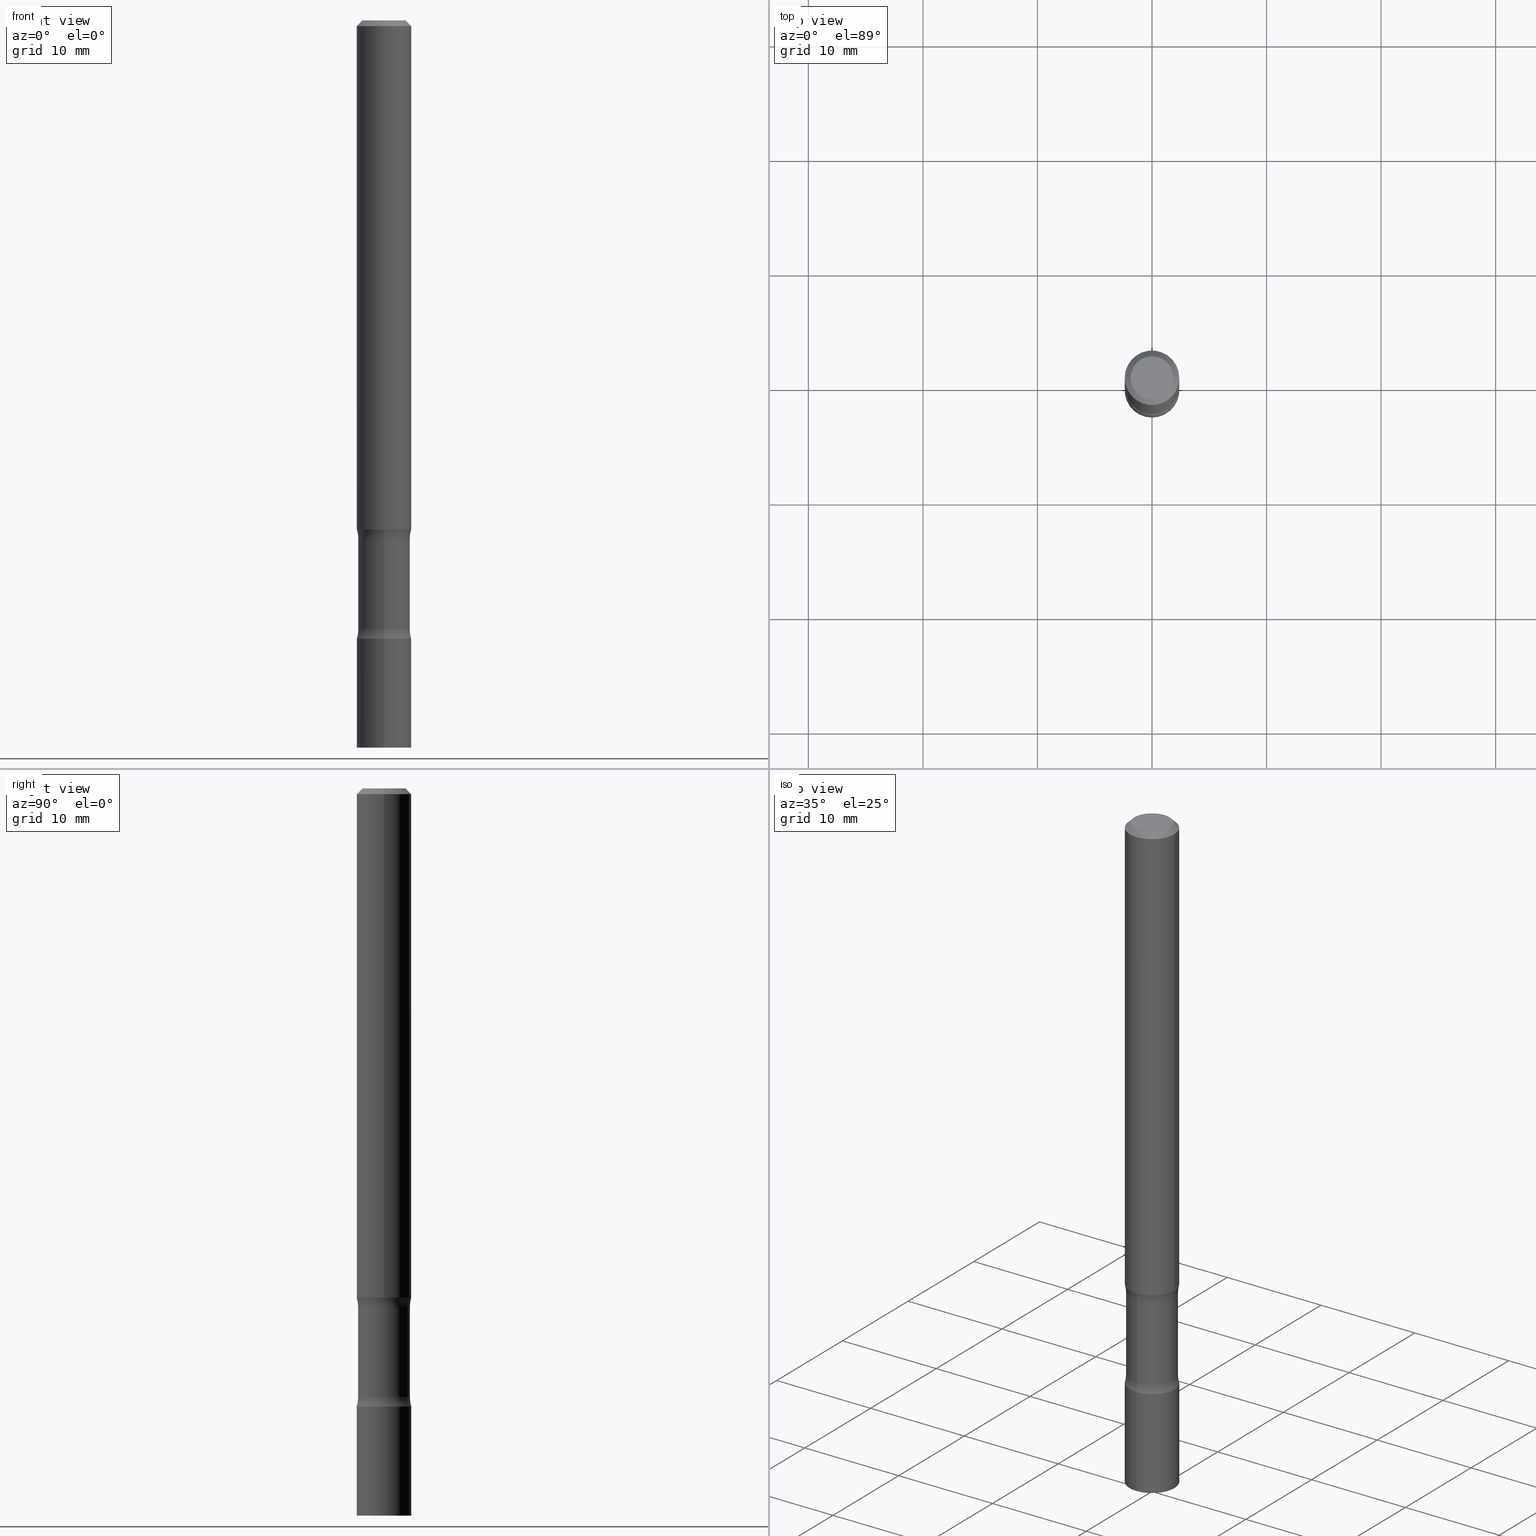
[diagram: canonical four-view strip — front | top / right | iso, engineering-drawing reading convention]
A machine part, canonical four-view strip (front | top / right | iso — engineering-drawing reading convention). The complete STEP part file that produces these views, byte-faithful:
ISO-10303-21;
HEADER;
FILE_DESCRIPTION (( 'STEP AP203' ),
    '1' );
FILE_NAME ('37768.STEP',
    '2024-03-11T13:24:23',
    ( '' ),
    ( '' ),
    'SwSTEP 2.0',
    'SolidWorks 2023',
    '' );
FILE_SCHEMA (( 'CONFIG_CONTROL_DESIGN' ));
ENDSEC;

DATA;
#1 = PRODUCT_RELATED_PRODUCT_CATEGORY ( 'detail', '', ( #291 ) ) ;
#2 = PLANE ( 'NONE',  #220 ) ;
#3 = AXIS2_PLACEMENT_3D ( 'NONE', #19, #158, #300 ) ;
#4 = CARTESIAN_POINT ( 'NONE',  ( 5.196337625650303527E-29, -7.419803958472619019E-15, -2.125000000000000000 ) ) ;
#5 = DIRECTION ( 'NONE',  ( 2.577039791092079409E-29, -3.303064199901000429E-15, -1.000000000000000000 ) ) ;
#6 = CIRCLE ( 'NONE', #292, 0.08906250000000008604 ) ;
#7 = ADVANCED_FACE ( 'NONE', ( #165 ), #459, .T. ) ;
#8 = DATE_AND_TIME ( #360, #53 ) ;
#9 = MANIFOLD_SOLID_BREP ( 'Body-Move/Copy2[2]', #21 ) ;
#10 = CARTESIAN_POINT ( 'NONE',  ( 0.000000000000000000, 0.000000000000000000, 0.000000000000000000 ) ) ;
#11 = CIRCLE ( 'NONE', #227, 0.1249999999999999584 ) ;
#12 = APPLICATION_PROTOCOL_DEFINITION ( 'international standard', 'config_control_design', 1994, #356 ) ;
#13 = DIRECTION ( 'NONE',  ( 6.982962677686265133E-15, 1.000000000000000000, -6.134676196298693444E-15 ) ) ;
#14 = ADVANCED_FACE ( 'NONE', ( #466 ), #399, .F. ) ;
#15 = DIRECTION ( 'NONE',  ( 6.982962677686265922E-15, 1.000000000000000000, -2.913971193241880372E-15 ) ) ;
#16 = VERTEX_POINT ( 'NONE', #110 ) ;
#17 = PRODUCT_DEFINITION_SHAPE ( 'NONE', 'NONE',  #259 ) ;
#18 = APPROVAL_STATUS ( 'not_yet_approved' ) ;
#19 = CARTESIAN_POINT ( 'NONE',  ( 6.162727547309833585E-29, -8.658453033435494328E-15, -2.500000000000000000 ) ) ;
#20 = ORIENTED_EDGE ( 'NONE', *, *, #394, .T. ) ;
#21 = CLOSED_SHELL ( 'NONE', ( #48, #144, #453, #83, #135, #7 ) ) ;
#22 = CIRCLE ( 'NONE', #302, 0.07374999999999982958 ) ;
#23 = ADVANCED_BREP_SHAPE_REPRESENTATION ( '37768', ( #344, #9, #347, #490 ), #123 ) ;
#24 = EDGE_CURVE ( 'NONE', #40, #304, #264, .T. ) ;
#25 = ORIENTED_EDGE ( 'NONE', *, *, #470, .T. ) ;
#26 = EDGE_CURVE ( 'NONE', #40, #370, #294, .T. ) ;
#27 = ORIENTED_EDGE ( 'NONE', *, *, #372, .F. ) ;
#28 = ORGANIZATION ( 'UNSPECIFIED', 'UNSPECIFIED', '' ) ;
#29 = CARTESIAN_POINT ( 'NONE',  ( 6.219201134814764177E-16, 0.08906249999999373002, -1.783910210022204623 ) ) ;
#30 = AXIS2_PLACEMENT_3D ( 'NONE', #382, #239, #380 ) ;
#31 = ORIENTED_EDGE ( 'NONE', *, *, #206, .F. ) ;
#32 = CIRCLE ( 'NONE', #238, 0.08906250000000003053 ) ;
#33 = DIRECTION ( 'NONE',  ( 6.860497997771531562E-15, 1.000000000000000000, 0.000000000000000000 ) ) ;
#34 = EDGE_LOOP ( 'NONE', ( #419, #381, #377, #82 ) ) ;
#35 = DIRECTION ( 'NONE',  ( 6.982962677686265133E-15, 1.000000000000000000, -3.067338098149345144E-15 ) ) ;
#36 = VERTEX_POINT ( 'NONE', #285 ) ;
#37 = EDGE_LOOP ( 'NONE', ( #223, #332, #491, #379 ) ) ;
#38 = EDGE_CURVE ( 'NONE', #40, #108, #90, .T. ) ;
#39 = VECTOR ( 'NONE', #266, 39.37007874015748143 ) ;
#40 = VERTEX_POINT ( 'NONE', #173 ) ;
#41 = EDGE_CURVE ( 'NONE', #150, #406, #352, .T. ) ;
#42 = CARTESIAN_POINT ( 'NONE',  ( -1.468575352647925561E-15, -0.2140625000000063172, -1.783910210022203513 ) ) ;
#43 =( NAMED_UNIT ( * ) PLANE_ANGLE_UNIT ( ) SI_UNIT ( $, .RADIAN. ) );
#44 = AXIS2_PLACEMENT_3D ( 'NONE', #253, #224, #56 ) ;
#45 = DIRECTION ( 'NONE',  ( 2.445335353247201149E-29, -3.491672451045938200E-15, -1.000000000000000000 ) ) ;
#46 = CARTESIAN_POINT ( 'NONE',  ( 1.494790448192267744E-15, 0.2140624999999927169, -2.091089789977796709 ) ) ;
#47 = DIRECTION ( 'NONE',  ( 6.860497997771531562E-15, 1.000000000000000000, 0.000000000000000000 ) ) ;
#48 = ADVANCED_FACE ( 'NONE', ( #170 ), #85, .T. ) ;
#49 =( NAMED_UNIT ( * ) SI_UNIT ( $, .STERADIAN. ) SOLID_ANGLE_UNIT ( ) );
#50 = FACE_OUTER_BOUND ( 'NONE', #269, .T. ) ;
#51 = SECURITY_CLASSIFICATION_LEVEL ( 'unclassified' ) ;
#52 = CARTESIAN_POINT ( 'NONE',  ( 4.890937612370273159E-31, -6.982962677686291609E-17, -0.02000000000000000042 ) ) ;
#53 = LOCAL_TIME ( 9, 24, 23.00000000000000000, #357 ) ;
#54 = EDGE_CURVE ( 'NONE', #36, #339, #79, .T. ) ;
#55 = APPROVAL_STATUS ( 'not_yet_approved' ) ;
#56 = DIRECTION ( 'NONE',  ( -6.982962677686265922E-15, -1.000000000000000000, 5.827942386483760744E-15 ) ) ;
#57 = AXIS2_PLACEMENT_3D ( 'NONE', #395, #476, #282 ) ;
#58 = ADVANCED_FACE ( 'NONE', ( #50 ), #497, .F. ) ;
#59 = CARTESIAN_POINT ( 'NONE',  ( 0.000000000000000000, 0.000000000000000000, 0.000000000000000000 ) ) ;
#60 = EDGE_LOOP ( 'NONE', ( #221, #299, #20, #450 ) ) ;
#61 = DIRECTION ( 'NONE',  ( 1.000000000000000000, 0.000000000000000000, 0.000000000000000000 ) ) ;
#62 = ORIENTED_EDGE ( 'NONE', *, *, #274, .F. ) ;
#63 = PRODUCT_DEFINITION_FORMATION_WITH_SPECIFIED_SOURCE ( 'ANY', '', #291, .NOT_KNOWN. ) ;
#64 = ORIENTED_EDGE ( 'NONE', *, *, #415, .F. ) ;
#65 = AXIS2_PLACEMENT_3D ( 'NONE', #328, #73, #194 ) ;
#66 = EDGE_LOOP ( 'NONE', ( #430, #162, #68, #106 ) ) ;
#67 = DIRECTION ( 'NONE',  ( -6.982962677686265922E-15, -1.000000000000000000, 3.491672451045937805E-15 ) ) ;
#68 = ORIENTED_EDGE ( 'NONE', *, *, #78, .F. ) ;
#69 = AXIS2_PLACEMENT_3D ( 'NONE', #343, #456, #346 ) ;
#70 = CC_DESIGN_APPROVAL ( #86, ( #311 ) ) ;
#71 = CYLINDRICAL_SURFACE ( 'NONE', #3, 0.08906250000000004441 ) ;
#72 = ORIENTED_EDGE ( 'NONE', *, *, #372, .T. ) ;
#73 = DIRECTION ( 'NONE',  ( -2.445335353247201709E-29, 3.491672451045937805E-15, 1.000000000000000000 ) ) ;
#74 = ORIENTED_EDGE ( 'NONE', *, *, #488, .F. ) ;
#75 = DIRECTION ( 'NONE',  ( -6.982962677686265922E-15, -1.000000000000000000, 0.000000000000000000 ) ) ;
#76 = APPROVAL ( #18, 'UNSPECIFIED' ) ;
#77 = EDGE_LOOP ( 'NONE', ( #147, #290 ) ) ;
#78 = EDGE_CURVE ( 'NONE', #406, #150, #129, .T. ) ;
#79 = CIRCLE ( 'NONE', #417, 0.09375000000000001388 ) ;
#80 = CARTESIAN_POINT ( 'NONE',  ( 6.219201134814847007E-16, 0.08906249999999277245, -2.091089789977796265 ) ) ;
#81 = TOROIDAL_SURFACE ( 'NONE', #157, 0.2140625000000000167, 0.1249999999999999584 ) ;
#82 = ORIENTED_EDGE ( 'NONE', *, *, #268, .F. ) ;
#83 = ADVANCED_FACE ( 'NONE', ( #355 ), #250, .F. ) ;
#84 = CARTESIAN_POINT ( 'NONE',  ( 4.890937612370273159E-31, -6.982962677686291609E-17, -0.02000000000000000042 ) ) ;
#85 = CYLINDRICAL_SURFACE ( 'NONE', #342, 0.09374999999999988898 ) ;
#86 = APPROVAL ( #55, 'UNSPECIFIED' ) ;
#87 = DIRECTION ( 'NONE',  ( 2.577039791092079409E-29, -3.303064199901000429E-15, -1.000000000000000000 ) ) ;
#88 = DIRECTION ( 'NONE',  ( 6.982962677686265922E-15, 1.000000000000000000, -3.303064199901000035E-15 ) ) ;
#89 = LINE ( 'NONE', #432, #389 ) ;
#90 = CIRCLE ( 'NONE', #225, 0.1250000000000000278 ) ;
#91 = FACE_OUTER_BOUND ( 'NONE', #77, .T. ) ;
#92 = MECHANICAL_CONTEXT ( 'NONE', #330, 'mechanical' ) ;
#93 = DIRECTION ( 'NONE',  ( 6.982962677686265922E-15, 1.000000000000000000, -2.913971193241880372E-15 ) ) ;
#94 = PERSON_AND_ORGANIZATION ( #489, #28 ) ;
#95 = CARTESIAN_POINT ( 'NONE',  ( 6.661338147750938256E-16, 0.09375000000000001388, -3.273442922855567185E-16 ) ) ;
#96 = DATE_TIME_ROLE ( 'classification_date' ) ;
#97 = CYLINDRICAL_SURFACE ( 'NONE', #134, 0.09375000000000001388 ) ;
#98 = LOCAL_TIME ( 9, 24, 23.00000000000000000, #475 ) ;
#99 = EDGE_CURVE ( 'NONE', #160, #258, #410, .T. ) ;
#100 = SHAPE_DEFINITION_REPRESENTATION ( #17, #23 ) ;
#101 = DIRECTION ( 'NONE',  ( 2.577039791092079409E-29, -3.303064199901000035E-15, -1.000000000000000000 ) ) ;
#102 = ORIENTED_EDGE ( 'NONE', *, *, #396, .T. ) ;
#103 = DIRECTION ( 'NONE',  ( 0.000000000000000000, 0.000000000000000000, 1.000000000000000000 ) ) ;
#104 = CARTESIAN_POINT ( 'NONE',  ( -6.270923951087528204E-16, -0.08906250000000738576, -2.091089789977795821 ) ) ;
#105 = ORIENTED_EDGE ( 'NONE', *, *, #192, .F. ) ;
#106 = ORIENTED_EDGE ( 'NONE', *, *, #394, .F. ) ;
#107 = APPROVAL ( #247, 'UNSPECIFIED' ) ;
#108 = VERTEX_POINT ( 'NONE', #392 ) ;
#109 = CARTESIAN_POINT ( 'NONE',  ( -0.09375000000000001388, -2.423827170101085722E-15, -1.750000000000000000 ) ) ;
#110 = CARTESIAN_POINT ( 'NONE',  ( -6.546527510330356365E-16, -0.09375000000000743849, -2.125000000000000000 ) ) ;
#111 = AXIS2_PLACEMENT_3D ( 'NONE', #505, #461, #273 ) ;
#112 = ADVANCED_FACE ( 'NONE', ( #136 ), #318, .T. ) ;
#113 = CARTESIAN_POINT ( 'NONE',  ( 6.113338383118004413E-29, -8.729181127614846091E-15, -2.500000000000000000 ) ) ;
#114 = EDGE_LOOP ( 'NONE', ( #301, #334, #124, #64 ) ) ;
#115 = ADVANCED_FACE ( 'NONE', ( #91 ), #2, .F. ) ;
#116 = CARTESIAN_POINT ( 'NONE',  ( -0.07374999999999982958, 5.499083108677920638E-16, -3.723527850031185562E-30 ) ) ;
#117 = DIRECTION ( 'NONE',  ( 2.577039791092079409E-29, -3.303064199901000035E-15, -1.000000000000000000 ) ) ;
#118 = DIRECTION ( 'NONE',  ( -6.982962677686265922E-15, -1.000000000000000000, 0.000000000000000000 ) ) ;
#119 = ADVANCED_FACE ( 'NONE', ( #242 ), #387, .T. ) ;
#120 = ORIENTED_EDGE ( 'NONE', *, *, #237, .F. ) ;
#121 = CLOSED_SHELL ( 'NONE', ( #219, #14, #58, #400, #115, #185, #413, #112 ) ) ;
#122 = DIRECTION ( 'NONE',  ( 2.577039791092079409E-29, -3.303064199901000429E-15, -1.000000000000000000 ) ) ;
#123 =( GEOMETRIC_REPRESENTATION_CONTEXT ( 3 ) GLOBAL_UNCERTAINTY_ASSIGNED_CONTEXT ( ( #433 ) ) GLOBAL_UNIT_ASSIGNED_CONTEXT ( ( #312, #43, #49 ) ) REPRESENTATION_CONTEXT ( 'NONE', 'WORKASPACE' ) );
#124 = ORIENTED_EDGE ( 'NONE', *, *, #274, .T. ) ;
#125 = DIRECTION ( 'NONE',  ( 2.438088387897960049E-29, -3.491481338843145188E-15, -1.000000000000000000 ) ) ;
#126 = FACE_OUTER_BOUND ( 'NONE', #149, .T. ) ;
#127 = CARTESIAN_POINT ( 'NONE',  ( 4.314805790192302667E-29, -6.296785408305889994E-15, -1.783910210022204401 ) ) ;
#128 = APPROVAL_DATE_TIME ( #8, #76 ) ;
#129 = CIRCLE ( 'NONE', #482, 0.09374999999999979183 ) ;
#130 = AXIS2_PLACEMENT_3D ( 'NONE', #276, #204, #13 ) ;
#131 = APPROVAL_PERSON_ORGANIZATION ( #283, #76, #473 ) ;
#132 = CARTESIAN_POINT ( 'NONE',  ( 4.279570410823988484E-29, -6.110092342975504671E-15, -1.750000000000000000 ) ) ;
#133 = PERSON_AND_ORGANIZATION_ROLE ( 'creator' ) ;
#134 = AXIS2_PLACEMENT_3D ( 'NONE', #59, #335, #67 ) ;
#135 = ADVANCED_FACE ( 'NONE', ( #507 ), #207, .F. ) ;
#136 = FACE_OUTER_BOUND ( 'NONE', #412, .T. ) ;
#137 = PERSON_AND_ORGANIZATION ( #489, #28 ) ;
#138 = DIRECTION ( 'NONE',  ( 6.982962677686265922E-15, 1.000000000000000000, -3.491672451045938200E-15 ) ) ;
#139 = EDGE_CURVE ( 'NONE', #414, #375, #493, .T. ) ;
#140 = CALENDAR_DATE ( 2024, 11, 3 ) ;
#141 = AXIS2_PLACEMENT_3D ( 'NONE', #52, #321, #246 ) ;
#142 = CARTESIAN_POINT ( 'NONE',  ( -0.09374999999999979183, 5.848231242562231212E-16, -0.02000000000000000042 ) ) ;
#143 = CC_DESIGN_APPROVAL ( #76, ( #259 ) ) ;
#144 = ADVANCED_FACE ( 'NONE', ( #211 ), #305, .T. ) ;
#145 = COORDINATED_UNIVERSAL_TIME_OFFSET ( 5, 0, .BEHIND. ) ;
#146 = DIRECTION ( 'NONE',  ( -6.982962677686265922E-15, -1.000000000000000000, 3.303064199901000035E-15 ) ) ;
#147 = ORIENTED_EDGE ( 'NONE', *, *, #470, .F. ) ;
#148 = EDGE_CURVE ( 'NONE', #449, #236, #440, .T. ) ;
#149 = EDGE_LOOP ( 'NONE', ( #181, #296 ) ) ;
#150 = VERTEX_POINT ( 'NONE', #142 ) ;
#151 = DIRECTION ( 'NONE',  ( 2.577039791092079409E-29, -3.303064199901000429E-15, -1.000000000000000000 ) ) ;
#152 = EDGE_CURVE ( 'NONE', #258, #160, #363, .T. ) ;
#153 = ORIENTED_EDGE ( 'NONE', *, *, #24, .F. ) ;
#154 = LINE ( 'NONE', #338, #200 ) ;
#155 = EDGE_LOOP ( 'NONE', ( #202, #120, #331, #25 ) ) ;
#156 = CC_DESIGN_PERSON_AND_ORGANIZATION_ASSIGNMENT ( #484, #210, ( #291 ) ) ;
#157 = AXIS2_PLACEMENT_3D ( 'NONE', #423, #198, #501 ) ;
#158 = DIRECTION ( 'NONE',  ( 2.577039791092079409E-29, -3.303064199901000429E-15, -1.000000000000000000 ) ) ;
#159 = AXIS2_PLACEMENT_3D ( 'NONE', #178, #388, #398 ) ;
#160 = VERTEX_POINT ( 'NONE', #109 ) ;
#161 = DIRECTION ( 'NONE',  ( -2.445335353247201709E-29, 3.491672451045937805E-15, 1.000000000000000000 ) ) ;
#162 = ORIENTED_EDGE ( 'NONE', *, *, #391, .T. ) ;
#163 = CARTESIAN_POINT ( 'NONE',  ( 5.196621213143415268E-29, -7.419397845041685201E-15, -2.125000000000000000 ) ) ;
#164 = CC_DESIGN_PERSON_AND_ORGANIZATION_ASSIGNMENT ( #177, #212, ( #311 ) ) ;
#165 = FACE_OUTER_BOUND ( 'NONE', #60, .T. ) ;
#166 = LENGTH_MEASURE_WITH_UNIT ( LENGTH_MEASURE( 0.02539999999999999897 ), #203 );
#167 = LOCAL_TIME ( 9, 24, 23.00000000000000000, #442 ) ;
#168 = DIRECTION ( 'NONE',  ( -2.438088387897960049E-29, 3.491481338843145188E-15, 1.000000000000000000 ) ) ;
#169 = CYLINDRICAL_SURFACE ( 'NONE', #30, 0.09375000000000001388 ) ;
#170 = FACE_OUTER_BOUND ( 'NONE', #66, .T. ) ;
#171 = PERSON_AND_ORGANIZATION ( #489, #28 ) ;
#172 = VECTOR ( 'NONE', #101, 39.37007874015748143 ) ;
#173 = CARTESIAN_POINT ( 'NONE',  ( -6.270923951087616950E-16, -0.08906250000000633105, -1.783910210022204179 ) ) ;
#174 = EDGE_CURVE ( 'NONE', #189, #16, #154, .T. ) ;
#175 = DATE_AND_TIME ( #327, #437 ) ;
#176 = DIRECTION ( 'NONE',  ( 6.982962677686265922E-15, 1.000000000000000000, -3.303064199901000429E-15 ) ) ;
#177 = PERSON_AND_ORGANIZATION ( #489, #28 ) ;
#178 = CARTESIAN_POINT ( 'NONE',  ( 4.279570410823988484E-29, -6.110092342975504671E-15, -1.750000000000000000 ) ) ;
#179 = APPROVAL_ROLE ( '' ) ;
#180 = LINE ( 'NONE', #421, #172 ) ;
#181 = ORIENTED_EDGE ( 'NONE', *, *, #241, .T. ) ;
#182 = DATE_AND_TIME ( #140, #287 ) ;
#183 = PLANE ( 'NONE',  #261 ) ;
#184 = TOROIDAL_SURFACE ( 'NONE', #368, 0.2140625000000000444, 0.1250000000000000278 ) ;
#185 = ADVANCED_FACE ( 'NONE', ( #340 ), #183, .F. ) ;
#186 = ORIENTED_EDGE ( 'NONE', *, *, #54, .T. ) ;
#187 = CC_DESIGN_PERSON_AND_ORGANIZATION_ASSIGNMENT ( #94, #397, ( #63 ) ) ;
#188 = AXIS2_PLACEMENT_3D ( 'NONE', #424, #316, #362 ) ;
#189 = VERTEX_POINT ( 'NONE', #298 ) ;
#190 = VECTOR ( 'NONE', #218, 39.37007874015748143 ) ;
#191 = DIRECTION ( 'NONE',  ( -2.577039791092079409E-29, 3.303064199901000035E-15, 1.000000000000000000 ) ) ;
#192 = EDGE_CURVE ( 'NONE', #414, #406, #288, .T. ) ;
#193 = ORIENTED_EDGE ( 'NONE', *, *, #152, .F. ) ;
#194 = DIRECTION ( 'NONE',  ( -6.982962677686265922E-15, -1.000000000000000000, 2.913971193241880372E-15 ) ) ;
#195 = ORIENTED_EDGE ( 'NONE', *, *, #26, .F. ) ;
#196 = DIRECTION ( 'NONE',  ( 2.577039791092079409E-29, -3.303064199901000429E-15, -1.000000000000000000 ) ) ;
#197 = ORIENTED_EDGE ( 'NONE', *, *, #415, .T. ) ;
#198 = DIRECTION ( 'NONE',  ( 2.577039791092079409E-29, -3.303064199901000429E-15, -1.000000000000000000 ) ) ;
#199 = ORIENTED_EDGE ( 'NONE', *, *, #366, .T. ) ;
#200 = VECTOR ( 'NONE', #416, 39.37007874015748143 ) ;
#201 = FACE_OUTER_BOUND ( 'NONE', #155, .T. ) ;
#202 = ORIENTED_EDGE ( 'NONE', *, *, #38, .F. ) ;
#203 =( LENGTH_UNIT ( ) NAMED_UNIT ( * ) SI_UNIT ( $, .METRE. ) );
#204 = DIRECTION ( 'NONE',  ( 2.577039791092079409E-29, -3.303064199901000429E-15, -1.000000000000000000 ) ) ;
#205 = FACE_OUTER_BOUND ( 'NONE', #427, .T. ) ;
#206 = EDGE_CURVE ( 'NONE', #189, #449, #323, .T. ) ;
#207 = PLANE ( 'NONE',  #404 ) ;
#208 = DIRECTION ( 'NONE',  ( -1.000000000000000000, 6.982962677686265922E-15, -4.883557194083112340E-29 ) ) ;
#209 = DIRECTION ( 'NONE',  ( 2.577039791092079409E-29, -3.303064199901000035E-15, -1.000000000000000000 ) ) ;
#210 = PERSON_AND_ORGANIZATION_ROLE ( 'design_owner' ) ;
#211 = FACE_OUTER_BOUND ( 'NONE', #255, .T. ) ;
#212 = PERSON_AND_ORGANIZATION_ROLE ( 'classification_officer' ) ;
#213 = AXIS2_PLACEMENT_3D ( 'NONE', #4, #161, #462 ) ;
#214 = DIRECTION ( 'NONE',  ( 1.000000000000000000, -6.982962677686265133E-15, 4.876176775795935793E-29 ) ) ;
#215 = CC_DESIGN_PERSON_AND_ORGANIZATION_ASSIGNMENT ( #137, #401, ( #63 ) ) ;
#216 = APPLICATION_PROTOCOL_DEFINITION ( 'international standard', 'config_control_design', 1994, #330 ) ;
#217 = CARTESIAN_POINT ( 'NONE',  ( -0.09374999999999979183, 5.848231242562231212E-16, -0.02000000000000000042 ) ) ;
#218 = DIRECTION ( 'NONE',  ( -0.7071067811865467956, 2.468850131082249172E-15, -0.7071067811865482389 ) ) ;
#219 = ADVANCED_FACE ( 'NONE', ( #289 ), #71, .T. ) ;
#220 = AXIS2_PLACEMENT_3D ( 'NONE', #479, #209, #88 ) ;
#221 = ORIENTED_EDGE ( 'NONE', *, *, #391, .F. ) ;
#222 = EDGE_CURVE ( 'NONE', #36, #304, #469, .T. ) ;
#223 = ORIENTED_EDGE ( 'NONE', *, *, #206, .T. ) ;
#224 = DIRECTION ( 'NONE',  ( -2.445335353247201709E-29, 3.491672451045937805E-15, 1.000000000000000000 ) ) ;
#225 = AXIS2_PLACEMENT_3D ( 'NONE', #42, #472, #47 ) ;
#226 = ORIENTED_EDGE ( 'NONE', *, *, #319, .T. ) ;
#227 = AXIS2_PLACEMENT_3D ( 'NONE', #46, #208, #75 ) ;
#228 = DIRECTION ( 'NONE',  ( -2.445335353247201709E-29, 3.491672451045937805E-15, 1.000000000000000000 ) ) ;
#229 = ORIENTED_EDGE ( 'NONE', *, *, #99, .F. ) ;
#230 = CARTESIAN_POINT ( 'NONE',  ( 5.108949665098794430E-29, -7.307796357737152502E-15, -2.091089789977795821 ) ) ;
#231 = ORIENTED_EDGE ( 'NONE', *, *, #500, .T. ) ;
#232 = DIRECTION ( 'NONE',  ( 2.445468806185136597E-29, -3.491481338843145583E-15, -1.000000000000000000 ) ) ;
#233 = ORIENTED_EDGE ( 'NONE', *, *, #192, .T. ) ;
#234 = AXIS2_PLACEMENT_3D ( 'NONE', #364, #151, #15 ) ;
#235 = DIRECTION ( 'NONE',  ( 6.982962677686266711E-15, 1.000000000000000000, -2.913971193241878794E-15 ) ) ;
#236 = VERTEX_POINT ( 'NONE', #443 ) ;
#237 = EDGE_CURVE ( 'NONE', #370, #40, #32, .T. ) ;
#238 = AXIS2_PLACEMENT_3D ( 'NONE', #403, #457, #448 ) ;
#239 = DIRECTION ( 'NONE',  ( -2.445335353247201709E-29, 3.491672451045937805E-15, 1.000000000000000000 ) ) ;
#240 = DIRECTION ( 'NONE',  ( -1.000000000000000000, 6.982962677686265922E-15, -4.876176775795935793E-29 ) ) ;
#241 = EDGE_CURVE ( 'NONE', #16, #236, #431, .T. ) ;
#242 = FACE_OUTER_BOUND ( 'NONE', #260, .T. ) ;
#243 = VECTOR ( 'NONE', #117, 39.37007874015748143 ) ;
#244 = DIRECTION ( 'NONE',  ( 1.000000000000000000, -6.982962677686266711E-15, 4.876176775795935793E-29 ) ) ;
#245 = CIRCLE ( 'NONE', #234, 0.09375000000000001388 ) ;
#246 = DIRECTION ( 'NONE',  ( 1.000000000000000000, -6.982962677686266711E-15, 0.000000000000000000 ) ) ;
#247 = APPROVAL_STATUS ( 'not_yet_approved' ) ;
#248 = VECTOR ( 'NONE', #376, 39.37007874015748143 ) ;
#249 = DIRECTION ( 'NONE',  ( 1.000000000000000000, -6.982962677686266711E-15, 4.876176775795935793E-29 ) ) ;
#250 = PLANE ( 'NONE',  #263 ) ;
#251 = PERSON_AND_ORGANIZATION ( #489, #28 ) ;
#252 = AXIS2_PLACEMENT_3D ( 'NONE', #163, #272, #277 ) ;
#253 = CARTESIAN_POINT ( 'NONE',  ( 6.113338383118004413E-29, -8.729181127614846091E-15, -2.500000000000000000 ) ) ;
#254 = CARTESIAN_POINT ( 'NONE',  ( 6.546527510331397661E-16, 0.09374999999999261702, -2.125000000000000444 ) ) ;
#255 = EDGE_LOOP ( 'NONE', ( #447, #233, #310, #369 ) ) ;
#256 = PERSON_AND_ORGANIZATION ( #489, #28 ) ;
#257 = DIRECTION ( 'NONE',  ( 2.577039791092079409E-29, -3.303064199901000429E-15, -1.000000000000000000 ) ) ;
#258 = VERTEX_POINT ( 'NONE', #495 ) ;
#259 = PRODUCT_DEFINITION ( 'UNKNOWN', '', #63, #426 ) ;
#260 = EDGE_LOOP ( 'NONE', ( #31, #308 ) ) ;
#261 = AXIS2_PLACEMENT_3D ( 'NONE', #455, #191, #146 ) ;
#262 = CARTESIAN_POINT ( 'NONE',  ( -1.468575352647917278E-15, -0.2140625000000073164, -2.091089789977794933 ) ) ;
#263 = AXIS2_PLACEMENT_3D ( 'NONE', #358, #125, #240 ) ;
#264 = LINE ( 'NONE', #499, #243 ) ;
#265 = CIRCLE ( 'NONE', #279, 0.09375000000000006939 ) ;
#266 = DIRECTION ( 'NONE',  ( 0.7071067811865467956, -7.319954787623254468E-15, -0.7071067811865482389 ) ) ;
#267 = ORIENTED_EDGE ( 'NONE', *, *, #268, .T. ) ;
#268 = EDGE_CURVE ( 'NONE', #370, #502, #180, .T. ) ;
#269 = EDGE_LOOP ( 'NONE', ( #195, #371, #231, #329 ) ) ;
#270 = DIRECTION ( 'NONE',  ( -1.000000000000000000, 6.982962677686266711E-15, 0.000000000000000000 ) ) ;
#271 = EDGE_LOOP ( 'NONE', ( #102, #326 ) ) ;
#272 = DIRECTION ( 'NONE',  ( 2.445335353247201149E-29, -3.491672451045938200E-15, -1.000000000000000000 ) ) ;
#273 = DIRECTION ( 'NONE',  ( 6.982962677686265922E-15, 1.000000000000000000, -3.303064199901000429E-15 ) ) ;
#274 = EDGE_CURVE ( 'NONE', #304, #502, #6, .T. ) ;
#275 = CARTESIAN_POINT ( 'NONE',  ( 0.09374999999999979183, -7.130013140679426072E-16, -0.02000000000000000042 ) ) ;
#276 = CARTESIAN_POINT ( 'NONE',  ( 6.162727547309833585E-29, -8.658453033435494328E-15, -2.500000000000000000 ) ) ;
#277 = DIRECTION ( 'NONE',  ( 6.982962677686265922E-15, 1.000000000000000000, -3.491672451045938200E-15 ) ) ;
#278 = DIRECTION ( 'NONE',  ( 1.000000000000000000, -6.982962677686266711E-15, 0.000000000000000000 ) ) ;
#279 = AXIS2_PLACEMENT_3D ( 'NONE', #435, #87, #235 ) ;
#280 = DIRECTION ( 'NONE',  ( 1.000000000000000000, -6.982962677686265922E-15, 4.876176775795935793E-29 ) ) ;
#281 = CALENDAR_DATE ( 2024, 11, 3 ) ;
#282 = DIRECTION ( 'NONE',  ( -1.000000000000000000, 6.982962677686266711E-15, 0.000000000000000000 ) ) ;
#283 = PERSON_AND_ORGANIZATION ( #489, #28 ) ;
#284 = CC_DESIGN_PERSON_AND_ORGANIZATION_ASSIGNMENT ( #256, #133, ( #259 ) ) ;
#285 = CARTESIAN_POINT ( 'NONE',  ( -6.431716872910290192E-16, -0.09375000000000745237, -2.125000000000000000 ) ) ;
#286 = APPROVAL_DATE_TIME ( #182, #86 ) ;
#287 = LOCAL_TIME ( 9, 24, 23.00000000000000000, #145 ) ;
#288 = LINE ( 'NONE', #446, #39 ) ;
#289 = FACE_OUTER_BOUND ( 'NONE', #34, .T. ) ;
#290 = ORIENTED_EDGE ( 'NONE', *, *, #500, .F. ) ;
#291 = PRODUCT ( '37768', '37768', '', ( #92 ) ) ;
#292 = AXIS2_PLACEMENT_3D ( 'NONE', #230, #257, #35 ) ;
#293 = ORIENTED_EDGE ( 'NONE', *, *, #348, .T. ) ;
#294 = CIRCLE ( 'NONE', #188, 0.08906250000000003053 ) ;
#295 = CIRCLE ( 'NONE', #361, 0.1250000000000000278 ) ;
#296 = ORIENTED_EDGE ( 'NONE', *, *, #488, .T. ) ;
#297 = VERTEX_POINT ( 'NONE', #373 ) ;
#298 = CARTESIAN_POINT ( 'NONE',  ( -6.546527510330263674E-16, -0.09375000000000872913, -2.499999999999999556 ) ) ;
#299 = ORIENTED_EDGE ( 'NONE', *, *, #99, .T. ) ;
#300 = DIRECTION ( 'NONE',  ( 6.982962677686265133E-15, 1.000000000000000000, -6.134676196298693444E-15 ) ) ;
#301 = ORIENTED_EDGE ( 'NONE', *, *, #54, .F. ) ;
#302 = AXIS2_PLACEMENT_3D ( 'NONE', #350, #345, #244 ) ;
#303 = CARTESIAN_POINT ( 'NONE',  ( 1.494790448192259855E-15, 0.2140624999999937716, -1.783910210022205289 ) ) ;
#304 = VERTEX_POINT ( 'NONE', #104 ) ;
#305 = CONICAL_SURFACE ( 'NONE', #57, 0.09374999999999979183, 0.7853981633974472798 ) ;
#306 = DIRECTION ( 'NONE',  ( 6.982962677686265922E-15, 1.000000000000000000, -3.303064199901000429E-15 ) ) ;
#307 = ADVANCED_FACE ( 'NONE', ( #408 ), #97, .T. ) ;
#308 = ORIENTED_EDGE ( 'NONE', *, *, #348, .F. ) ;
#309 = DIRECTION ( 'NONE',  ( -2.445468806185136877E-29, 3.491481338843145188E-15, 1.000000000000000000 ) ) ;
#310 = ORIENTED_EDGE ( 'NONE', *, *, #78, .T. ) ;
#311 = SECURITY_CLASSIFICATION ( '', '', #51 ) ;
#312 =( CONVERSION_BASED_UNIT ( 'INCH', #166 ) LENGTH_UNIT ( ) NAMED_UNIT ( #313 ) );
#313 = DIMENSIONAL_EXPONENTS ( 1.000000000000000000, 0.000000000000000000, 0.000000000000000000, 0.000000000000000000, 0.000000000000000000, 0.000000000000000000, 0.000000000000000000 ) ;
#314 = DIRECTION ( 'NONE',  ( 2.577039791092079409E-29, -3.303064199901000429E-15, -1.000000000000000000 ) ) ;
#315 = DIRECTION ( 'NONE',  ( -2.445468806185136877E-29, 3.491481338843145188E-15, 1.000000000000000000 ) ) ;
#316 = DIRECTION ( 'NONE',  ( 2.577039791092079409E-29, -3.303064199901000429E-15, -1.000000000000000000 ) ) ;
#317 = COORDINATED_UNIVERSAL_TIME_OFFSET ( 5, 0, .BEHIND. ) ;
#318 = CYLINDRICAL_SURFACE ( 'NONE', #130, 0.08906250000000004441 ) ;
#319 = EDGE_CURVE ( 'NONE', #502, #304, #341, .T. ) ;
#320 = CC_DESIGN_SECURITY_CLASSIFICATION ( #311, ( #63 ) ) ;
#321 = DIRECTION ( 'NONE',  ( -2.445468806185136597E-29, 3.491481338843145583E-15, 1.000000000000000000 ) ) ;
#322 = DATE_AND_TIME ( #480, #167 ) ;
#323 = CIRCLE ( 'NONE', #384, 0.09375000000000001388 ) ;
#324 = CARTESIAN_POINT ( 'NONE',  ( 5.196337625650303527E-29, -7.419803958472619019E-15, -2.125000000000000000 ) ) ;
#325 = DIRECTION ( 'NONE',  ( 1.000000000000000000, -6.860497997771530774E-15, 4.843106324085242827E-29 ) ) ;
#326 = ORIENTED_EDGE ( 'NONE', *, *, #139, .T. ) ;
#327 = CALENDAR_DATE ( 2024, 11, 3 ) ;
#328 = CARTESIAN_POINT ( 'NONE',  ( 5.196337625650303527E-29, -7.419803958472619019E-15, -2.125000000000000000 ) ) ;
#329 = ORIENTED_EDGE ( 'NONE', *, *, #452, .F. ) ;
#330 = APPLICATION_CONTEXT ( 'configuration controlled 3d designs of mechanical parts and assemblies' ) ;
#331 = ORIENTED_EDGE ( 'NONE', *, *, #452, .T. ) ;
#332 = ORIENTED_EDGE ( 'NONE', *, *, #148, .T. ) ;
#333 = APPROVAL_PERSON_ORGANIZATION ( #171, #107, #393 ) ;
#334 = ORIENTED_EDGE ( 'NONE', *, *, #222, .T. ) ;
#335 = DIRECTION ( 'NONE',  ( -2.445335353247201709E-29, 3.491672451045937805E-15, 1.000000000000000000 ) ) ;
#336 = AXIS2_PLACEMENT_3D ( 'NONE', #405, #367, #378 ) ;
#337 = ORIENTED_EDGE ( 'NONE', *, *, #41, .T. ) ;
#338 = CARTESIAN_POINT ( 'NONE',  ( -6.546527510330875041E-16, -0.09375000000000001388, 3.273442922855567185E-16 ) ) ;
#339 = VERTEX_POINT ( 'NONE', #254 ) ;
#340 = FACE_OUTER_BOUND ( 'NONE', #365, .T. ) ;
#341 = CIRCLE ( 'NONE', #374, 0.08906250000000008604 ) ;
#342 = AXIS2_PLACEMENT_3D ( 'NONE', #10, #436, #214 ) ;
#343 = CARTESIAN_POINT ( 'NONE',  ( 0.000000000000000000, 0.000000000000000000, 0.000000000000000000 ) ) ;
#344 = MANIFOLD_SOLID_BREP ( 'Body-Move/Copy2[1]', #458 ) ;
#345 = DIRECTION ( 'NONE',  ( -2.445468806185136597E-29, 3.491481338843145583E-15, 1.000000000000000000 ) ) ;
#346 = DIRECTION ( 'NONE',  ( 1.000000000000000000, -6.982962677686265133E-15, 4.876176775795935793E-29 ) ) ;
#347 = MANIFOLD_SOLID_BREP ( 'Body-Move/Copy2[4]', #121 ) ;
#348 = EDGE_CURVE ( 'NONE', #449, #189, #402, .T. ) ;
#349 = FACE_OUTER_BOUND ( 'NONE', #496, .T. ) ;
#350 = CARTESIAN_POINT ( 'NONE',  ( 0.000000000000000000, 0.000000000000000000, 0.000000000000000000 ) ) ;
#351 = DIRECTION ( 'NONE',  ( -2.445468806185136597E-29, 3.491481338843145583E-15, 1.000000000000000000 ) ) ;
#352 = CIRCLE ( 'NONE', #141, 0.09374999999999979183 ) ;
#353 = CARTESIAN_POINT ( 'NONE',  ( 0.000000000000000000, 0.000000000000000000, 0.000000000000000000 ) ) ;
#354 = DIRECTION ( 'NONE',  ( -1.000000000000000000, 6.982962677686265922E-15, -4.883557194083112340E-29 ) ) ;
#355 = FACE_OUTER_BOUND ( 'NONE', #271, .T. ) ;
#356 = APPLICATION_CONTEXT ( 'configuration controlled 3d designs of mechanical parts and assemblies' ) ;
#357 = COORDINATED_UNIVERSAL_TIME_OFFSET ( 5, 0, .BEHIND. ) ;
#358 = CARTESIAN_POINT ( 'NONE',  ( 5.149934974793609077E-16, 0.07374999999999982958, -2.574967487396813906E-16 ) ) ;
#359 = AXIS2_PLACEMENT_3D ( 'NONE', #127, #5, #176 ) ;
#360 = CALENDAR_DATE ( 2024, 11, 3 ) ;
#361 = AXIS2_PLACEMENT_3D ( 'NONE', #303, #354, #118 ) ;
#362 = DIRECTION ( 'NONE',  ( 6.982962677686265133E-15, 1.000000000000000000, -3.067338098149347116E-15 ) ) ;
#363 = CIRCLE ( 'NONE', #336, 0.09375000000000001388 ) ;
#364 = CARTESIAN_POINT ( 'NONE',  ( 5.196337625650303527E-29, -7.419803958472619019E-15, -2.125000000000000000 ) ) ;
#365 = EDGE_LOOP ( 'NONE', ( #72, #186 ) ) ;
#366 = EDGE_CURVE ( 'NONE', #375, #150, #485, .T. ) ;
#367 = DIRECTION ( 'NONE',  ( -2.445468806185136597E-29, 3.491481338843145583E-15, 1.000000000000000000 ) ) ;
#368 = AXIS2_PLACEMENT_3D ( 'NONE', #390, #122, #306 ) ;
#369 = ORIENTED_EDGE ( 'NONE', *, *, #366, .F. ) ;
#370 = VERTEX_POINT ( 'NONE', #29 ) ;
#371 = ORIENTED_EDGE ( 'NONE', *, *, #38, .T. ) ;
#372 = EDGE_CURVE ( 'NONE', #339, #36, #245, .T. ) ;
#373 = CARTESIAN_POINT ( 'NONE',  ( 6.546527510331302998E-16, 0.09374999999999390765, -1.750000000000000222 ) ) ;
#374 = AXIS2_PLACEMENT_3D ( 'NONE', #492, #196, #498 ) ;
#375 = VERTEX_POINT ( 'NONE', #116 ) ;
#376 = DIRECTION ( 'NONE',  ( -2.445335353247201709E-29, 3.491672451045938200E-15, 1.000000000000000000 ) ) ;
#377 = ORIENTED_EDGE ( 'NONE', *, *, #319, .F. ) ;
#378 = DIRECTION ( 'NONE',  ( 1.000000000000000000, -6.982962677686261189E-15, 0.000000000000000000 ) ) ;
#379 = ORIENTED_EDGE ( 'NONE', *, *, #174, .F. ) ;
#380 = DIRECTION ( 'NONE',  ( -6.982962677686265922E-15, -1.000000000000000000, 3.491672451045937805E-15 ) ) ;
#381 = ORIENTED_EDGE ( 'NONE', *, *, #24, .T. ) ;
#382 = CARTESIAN_POINT ( 'NONE',  ( 0.000000000000000000, 0.000000000000000000, 0.000000000000000000 ) ) ;
#383 = ORIENTED_EDGE ( 'NONE', *, *, #26, .T. ) ;
#384 = AXIS2_PLACEMENT_3D ( 'NONE', #113, #228, #481 ) ;
#385 = CC_DESIGN_DATE_AND_TIME_ASSIGNMENT ( #322, #96, ( #311 ) ) ;
#386 = CARTESIAN_POINT ( 'NONE',  ( 4.229947703990773468E-29, -6.181154883509742133E-15, -1.750000000000000000 ) ) ;
#387 = PLANE ( 'NONE',  #486 ) ;
#388 = DIRECTION ( 'NONE',  ( -2.445468806185136597E-29, 3.491481338843145583E-15, 1.000000000000000000 ) ) ;
#389 = VECTOR ( 'NONE', #315, 39.37007874015748143 ) ;
#390 = CARTESIAN_POINT ( 'NONE',  ( 4.314805790192302667E-29, -6.296785408305889994E-15, -1.783910210022204401 ) ) ;
#391 = EDGE_CURVE ( 'NONE', #160, #150, #504, .T. ) ;
#392 = CARTESIAN_POINT ( 'NONE',  ( -6.431716872910392743E-16, -0.09375000000000627276, -1.749999999999999556 ) ) ;
#393 = APPROVAL_ROLE ( '' ) ;
#394 = EDGE_CURVE ( 'NONE', #258, #406, #89, .T. ) ;
#395 = CARTESIAN_POINT ( 'NONE',  ( 4.890937612370273159E-31, -6.982962677686291609E-17, -0.02000000000000000042 ) ) ;
#396 = EDGE_CURVE ( 'NONE', #375, #414, #22, .T. ) ;
#397 = PERSON_AND_ORGANIZATION_ROLE ( 'creator' ) ;
#398 = DIRECTION ( 'NONE',  ( 1.000000000000000000, -6.982962677686261189E-15, 0.000000000000000000 ) ) ;
#399 = TOROIDAL_SURFACE ( 'NONE', #111, 0.2140625000000000167, 0.1249999999999999584 ) ;
#400 = ADVANCED_FACE ( 'NONE', ( #201 ), #184, .F. ) ;
#401 = PERSON_AND_ORGANIZATION_ROLE ( 'design_supplier' ) ;
#402 = CIRCLE ( 'NONE', #44, 0.09375000000000001388 ) ;
#403 = CARTESIAN_POINT ( 'NONE',  ( 4.317335664542283686E-29, -6.293162484245211017E-15, -1.783910210022204401 ) ) ;
#404 = AXIS2_PLACEMENT_3D ( 'NONE', #132, #168, #280 ) ;
#405 = CARTESIAN_POINT ( 'NONE',  ( 4.279570410823988484E-29, -6.110092342975504671E-15, -1.750000000000000000 ) ) ;
#406 = VERTEX_POINT ( 'NONE', #275 ) ;
#407 = CARTESIAN_POINT ( 'NONE',  ( 0.000000000000000000, 0.000000000000000000, 0.000000000000000000 ) ) ;
#408 = FACE_OUTER_BOUND ( 'NONE', #37, .T. ) ;
#409 = ORIENTED_EDGE ( 'NONE', *, *, #222, .F. ) ;
#410 = CIRCLE ( 'NONE', #159, 0.09375000000000001388 ) ;
#411 = AXIS2_PLACEMENT_3D ( 'NONE', #84, #232, #270 ) ;
#412 = EDGE_LOOP ( 'NONE', ( #153, #383, #267, #62 ) ) ;
#413 = ADVANCED_FACE ( 'NONE', ( #205 ), #81, .F. ) ;
#414 = VERTEX_POINT ( 'NONE', #465 ) ;
#415 = EDGE_CURVE ( 'NONE', #339, #502, #11, .T. ) ;
#416 = DIRECTION ( 'NONE',  ( -2.445335353247201709E-29, 3.491672451045938200E-15, 1.000000000000000000 ) ) ;
#417 = AXIS2_PLACEMENT_3D ( 'NONE', #324, #314, #93 ) ;
#418 = CC_DESIGN_APPROVAL ( #107, ( #63 ) ) ;
#419 = ORIENTED_EDGE ( 'NONE', *, *, #237, .T. ) ;
#420 = CC_DESIGN_DATE_AND_TIME_ASSIGNMENT ( #175, #445, ( #259 ) ) ;
#421 = CARTESIAN_POINT ( 'NONE',  ( 6.219201134814949559E-16, 0.08906249999999139855, -2.500000000000000444 ) ) ;
#422 = ORIENTED_EDGE ( 'NONE', *, *, #396, .F. ) ;
#423 = CARTESIAN_POINT ( 'NONE',  ( 5.113694852322929096E-29, -7.301000979552907494E-15, -2.091089789977795821 ) ) ;
#424 = CARTESIAN_POINT ( 'NONE',  ( 4.317335664542283686E-29, -6.293162484245211017E-15, -1.783910210022204401 ) ) ;
#425 = DIRECTION ( 'NONE',  ( 6.982962677686266711E-15, 1.000000000000000000, -2.913971193241878794E-15 ) ) ;
#426 = DESIGN_CONTEXT ( 'detailed design', #356, 'design' ) ;
#427 = EDGE_LOOP ( 'NONE', ( #409, #27, #197, #226 ) ) ;
#428 = CIRCLE ( 'NONE', #213, 0.09375000000000001388 ) ;
#429 = CARTESIAN_POINT ( 'NONE',  ( 6.661338147751504264E-16, 0.09374999999999128475, -2.500000000000000444 ) ) ;
#430 = ORIENTED_EDGE ( 'NONE', *, *, #152, .T. ) ;
#431 = CIRCLE ( 'NONE', #65, 0.09375000000000001388 ) ;
#432 = CARTESIAN_POINT ( 'NONE',  ( 0.09374999999999988898, -6.546527510330866166E-16, 4.571415727308684201E-30 ) ) ;
#433 = UNCERTAINTY_MEASURE_WITH_UNIT (LENGTH_MEASURE( 1.000000000000000082E-05 ), #312, 'distance_accuracy_value', 'NONE');
#434 = CARTESIAN_POINT ( 'NONE',  ( 4.890937612370273159E-31, -6.982962677686291609E-17, -0.02000000000000000042 ) ) ;
#435 = CARTESIAN_POINT ( 'NONE',  ( 4.229947703990773468E-29, -6.181154883509742133E-15, -1.750000000000000000 ) ) ;
#436 = DIRECTION ( 'NONE',  ( -2.445468806185136597E-29, 3.491481338843145583E-15, 1.000000000000000000 ) ) ;
#437 = LOCAL_TIME ( 9, 24, 23.00000000000000000, #317 ) ;
#438 = DIRECTION ( 'NONE',  ( -2.445468806185136597E-29, 3.491481338843145583E-15, 1.000000000000000000 ) ) ;
#439 = DATE_AND_TIME ( #281, #98 ) ;
#440 = LINE ( 'NONE', #95, #248 ) ;
#441 = ADVANCED_FACE ( 'NONE', ( #126 ), #468, .F. ) ;
#442 = COORDINATED_UNIVERSAL_TIME_OFFSET ( 5, 0, .BEHIND. ) ;
#443 = CARTESIAN_POINT ( 'NONE',  ( 6.661338147751549624E-16, 0.09374999999999257538, -2.125000000000000444 ) ) ;
#444 = CONICAL_SURFACE ( 'NONE', #411, 0.09374999999999979183, 0.7853981633974472798 ) ;
#445 = DATE_TIME_ROLE ( 'creation_date' ) ;
#446 = CARTESIAN_POINT ( 'NONE',  ( 0.09374999999999979183, -7.130013140679426072E-16, -0.02000000000000000042 ) ) ;
#447 = ORIENTED_EDGE ( 'NONE', *, *, #139, .F. ) ;
#448 = DIRECTION ( 'NONE',  ( 6.982962677686265133E-15, 1.000000000000000000, -3.067338098149347116E-15 ) ) ;
#449 = VERTEX_POINT ( 'NONE', #429 ) ;
#450 = ORIENTED_EDGE ( 'NONE', *, *, #41, .F. ) ;
#451 = AXIS2_PLACEMENT_3D ( 'NONE', #386, #460, #425 ) ;
#452 = EDGE_CURVE ( 'NONE', #370, #297, #295, .T. ) ;
#453 = ADVANCED_FACE ( 'NONE', ( #349 ), #444, .T. ) ;
#454 = ORIENTED_EDGE ( 'NONE', *, *, #148, .F. ) ;
#455 = CARTESIAN_POINT ( 'NONE',  ( 5.196621213143415268E-29, -7.419397845041685201E-15, -2.125000000000000000 ) ) ;
#456 = DIRECTION ( 'NONE',  ( -2.445468806185136597E-29, 3.491481338843145583E-15, 1.000000000000000000 ) ) ;
#457 = DIRECTION ( 'NONE',  ( 2.577039791092079409E-29, -3.303064199901000429E-15, -1.000000000000000000 ) ) ;
#458 = CLOSED_SHELL ( 'NONE', ( #307, #463, #441, #119 ) ) ;
#459 = CYLINDRICAL_SURFACE ( 'NONE', #69, 0.09374999999999988898 ) ;
#460 = DIRECTION ( 'NONE',  ( 2.577039791092079409E-29, -3.303064199901000429E-15, -1.000000000000000000 ) ) ;
#461 = DIRECTION ( 'NONE',  ( 2.577039791092079409E-29, -3.303064199901000429E-15, -1.000000000000000000 ) ) ;
#462 = DIRECTION ( 'NONE',  ( -6.982962677686265922E-15, -1.000000000000000000, 2.913971193241880372E-15 ) ) ;
#463 = ADVANCED_FACE ( 'NONE', ( #508 ), #169, .T. ) ;
#464 = ORIENTED_EDGE ( 'NONE', *, *, #174, .T. ) ;
#465 = CARTESIAN_POINT ( 'NONE',  ( 0.07374999999999982958, -6.094815207017959226E-16, 3.931526600461596647E-30 ) ) ;
#466 = FACE_OUTER_BOUND ( 'NONE', #114, .T. ) ;
#467 = VECTOR ( 'NONE', #309, 39.37007874015748143 ) ;
#468 = PLANE ( 'NONE',  #252 ) ;
#469 = CIRCLE ( 'NONE', #503, 0.1249999999999999584 ) ;
#470 = EDGE_CURVE ( 'NONE', #297, #108, #265, .T. ) ;
#471 = CARTESIAN_POINT ( 'NONE',  ( -0.09374999999999988898, 6.661338147750931354E-16, -4.611501647113968390E-30 ) ) ;
#472 = DIRECTION ( 'NONE',  ( 1.000000000000000000, -6.860497997771530774E-15, 4.843106324085242827E-29 ) ) ;
#473 = APPROVAL_ROLE ( '' ) ;
#474 = CARTESIAN_POINT ( 'NONE',  ( 6.113672015462842613E-29, -8.728703347107864943E-15, -2.500000000000000000 ) ) ;
#475 = COORDINATED_UNIVERSAL_TIME_OFFSET ( 5, 0, .BEHIND. ) ;
#476 = DIRECTION ( 'NONE',  ( 2.445468806185136597E-29, -3.491481338843145583E-15, -1.000000000000000000 ) ) ;
#477 = AXIS2_PLACEMENT_3D ( 'NONE', #353, #438, #249 ) ;
#478 = APPROVAL_DATE_TIME ( #439, #107 ) ;
#479 = CARTESIAN_POINT ( 'NONE',  ( 4.279570410823988484E-29, -6.110092342975504671E-15, -1.750000000000000000 ) ) ;
#480 = CALENDAR_DATE ( 2024, 11, 3 ) ;
#481 = DIRECTION ( 'NONE',  ( -6.982962677686265922E-15, -1.000000000000000000, 5.827942386483760744E-15 ) ) ;
#482 = AXIS2_PLACEMENT_3D ( 'NONE', #434, #351, #278 ) ;
#483 = CIRCLE ( 'NONE', #451, 0.09375000000000006939 ) ;
#484 = PERSON_AND_ORGANIZATION ( #489, #28 ) ;
#485 = LINE ( 'NONE', #217, #190 ) ;
#486 = AXIS2_PLACEMENT_3D ( 'NONE', #474, #45, #138 ) ;
#487 = EDGE_LOOP ( 'NONE', ( #454, #293, #464, #74 ) ) ;
#488 = EDGE_CURVE ( 'NONE', #236, #16, #428, .T. ) ;
#489 = PERSON ( 'UNSPECIFIED', 'UNSPECIFIED', 'UNSPECIFIED', ('UNSPECIFIED'), ('UNSPECIFIED'), ('UNSPECIFIED') ) ;
#490 = AXIS2_PLACEMENT_3D ( 'NONE', #407, #103, #61 ) ;
#491 = ORIENTED_EDGE ( 'NONE', *, *, #241, .F. ) ;
#492 = CARTESIAN_POINT ( 'NONE',  ( 5.108949665098794430E-29, -7.307796357737152502E-15, -2.091089789977795821 ) ) ;
#493 = CIRCLE ( 'NONE', #477, 0.07374999999999982958 ) ;
#494 = EDGE_LOOP ( 'NONE', ( #193, #229 ) ) ;
#495 = CARTESIAN_POINT ( 'NONE',  ( 0.09375000000000001388, -6.764745094008591386E-15, -1.750000000000000000 ) ) ;
#496 = EDGE_LOOP ( 'NONE', ( #105, #422, #199, #337 ) ) ;
#497 = TOROIDAL_SURFACE ( 'NONE', #359, 0.2140625000000000444, 0.1250000000000000278 ) ;
#498 = DIRECTION ( 'NONE',  ( 6.982962677686265133E-15, 1.000000000000000000, -3.067338098149345144E-15 ) ) ;
#499 = CARTESIAN_POINT ( 'NONE',  ( -6.110131029264656761E-16, -0.08906250000000870415, -2.499999999999999556 ) ) ;
#500 = EDGE_CURVE ( 'NONE', #108, #297, #483, .T. ) ;
#501 = DIRECTION ( 'NONE',  ( 6.982962677686265922E-15, 1.000000000000000000, -3.303064199901000429E-15 ) ) ;
#502 = VERTEX_POINT ( 'NONE', #80 ) ;
#503 = AXIS2_PLACEMENT_3D ( 'NONE', #262, #325, #33 ) ;
#504 = LINE ( 'NONE', #471, #467 ) ;
#505 = CARTESIAN_POINT ( 'NONE',  ( 5.113694852322929096E-29, -7.301000979552907494E-15, -2.091089789977795821 ) ) ;
#506 = APPROVAL_PERSON_ORGANIZATION ( #251, #86, #179 ) ;
#507 = FACE_OUTER_BOUND ( 'NONE', #494, .T. ) ;
#508 = FACE_OUTER_BOUND ( 'NONE', #487, .T. ) ;
ENDSEC;
END-ISO-10303-21;
